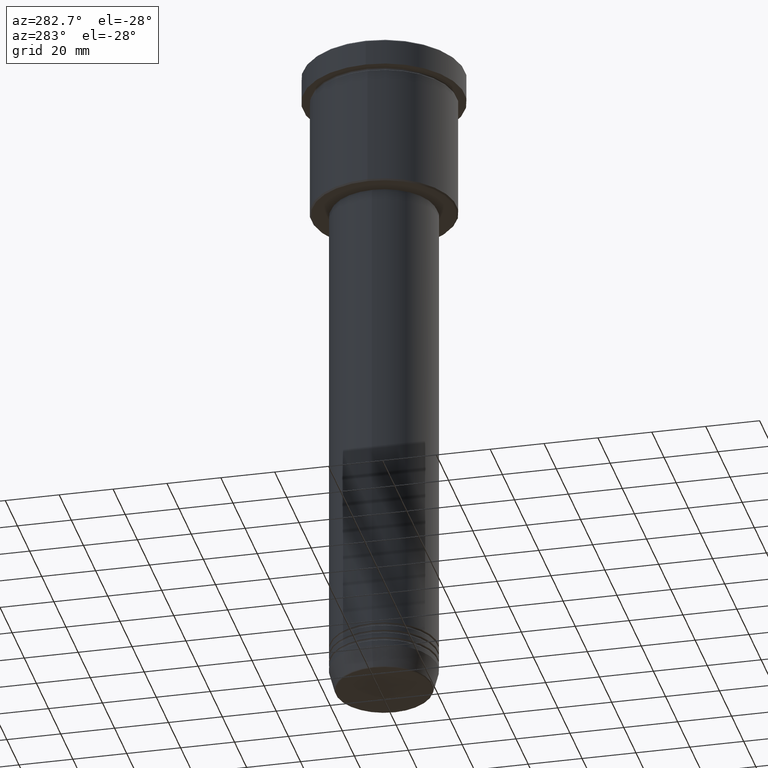
[diagram: clean part render]
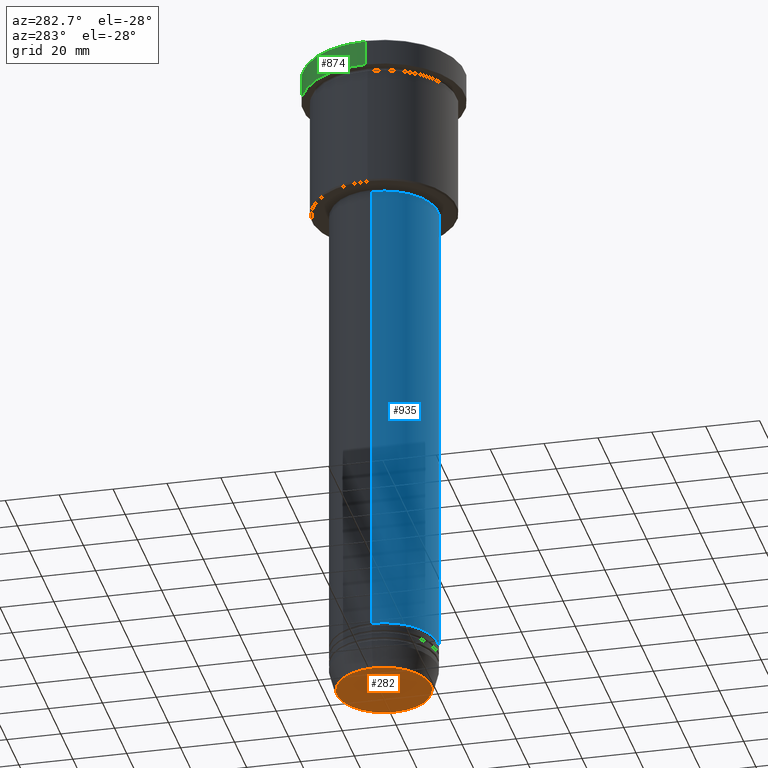
[diagram: same view with three faces highlighted in distinct colors, each labeled with its STEP entity id]
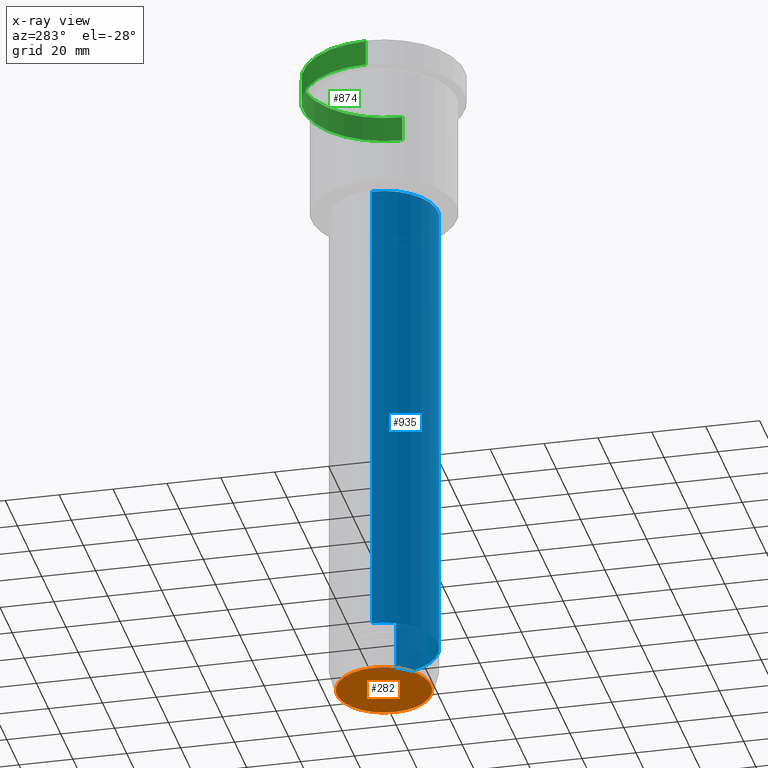
[diagram: x-ray of the same camera — body ghosted, the three highlighted faces saturated]
A machine part, auxiliary view with three faces highlighted in distinct colors.
The next image is the same camera in x-ray (body ghosted, the three faces saturated) — at least one of them is partly hidden behind the body in this view.
Their STEP definitions:

[orange] entity #282 — the highlighted planar face has unit normal (0, -0, 1).
#10 = AXIS2_PLACEMENT_3D ( 'NONE', #700, #515, #49 ) ;
#42 = CIRCLE ( 'NONE', #476, 17.47274296656154036 ) ;
#49 = DIRECTION ( 'NONE',  ( 1.000000000000000000, 0.000000000000000000, 0.000000000000000000 ) ) ;
#119 = VERTEX_POINT ( 'NONE', #770 ) ;
#282 = ADVANCED_FACE ( 'NONE', ( #811 ), #723, .F. ) ;
#308 = VERTEX_POINT ( 'NONE', #1068 ) ;
#343 = EDGE_CURVE ( 'NONE', #308, #119, #432, .T. ) ;
#432 = CIRCLE ( 'NONE', #976, 17.47274296656154036 ) ;
#437 = ORIENTED_EDGE ( 'NONE', *, *, #1122, .T. ) ;
#476 = AXIS2_PLACEMENT_3D ( 'NONE', #677, #755, #760 ) ;
#515 = DIRECTION ( 'NONE',  ( 0.000000000000000000, -0.000000000000000000, 1.000000000000000000 ) ) ;
#677 = CARTESIAN_POINT ( 'NONE',  ( 0.000000000000000000, 0.000000000000000000, -251.0000000000000000 ) ) ;
#700 = CARTESIAN_POINT ( 'NONE',  ( 0.000000000000000000, 0.000000000000000000, -251.0000000000000000 ) ) ;
#723 = PLANE ( 'NONE',  #10 ) ;
#730 = CARTESIAN_POINT ( 'NONE',  ( 0.000000000000000000, 0.000000000000000000, -251.0000000000000000 ) ) ;
#755 = DIRECTION ( 'NONE',  ( 0.000000000000000000, 0.000000000000000000, -1.000000000000000000 ) ) ;
#760 = DIRECTION ( 'NONE',  ( 1.000000000000000000, 0.000000000000000000, 0.000000000000000000 ) ) ;
#770 = CARTESIAN_POINT ( 'NONE',  ( -17.47274296656154036, 2.169366823916869292E-15, -251.0000000000000000 ) ) ;
#811 = FACE_OUTER_BOUND ( 'NONE', #871, .T. ) ;
#820 = ORIENTED_EDGE ( 'NONE', *, *, #343, .T. ) ;
#871 = EDGE_LOOP ( 'NONE', ( #820, #437 ) ) ;
#976 = AXIS2_PLACEMENT_3D ( 'NONE', #730, #1087, #1075 ) ;
#1068 = CARTESIAN_POINT ( 'NONE',  ( 17.47274296656154036, 0.000000000000000000, -251.0000000000000000 ) ) ;
#1075 = DIRECTION ( 'NONE',  ( 1.000000000000000000, 0.000000000000000000, 0.000000000000000000 ) ) ;
#1087 = DIRECTION ( 'NONE',  ( 0.000000000000000000, 0.000000000000000000, -1.000000000000000000 ) ) ;
#1122 = EDGE_CURVE ( 'NONE', #119, #308, #42, .T. ) ;

[blue] entity #935 — the highlighted cylindrical surface (partial cylindrical patch) has radius 20 mm, axis along (-0, -0, 1).
#73 = DIRECTION ( 'NONE',  ( -0.000000000000000000, -0.000000000000000000, 1.000000000000000000 ) ) ;
#88 = LINE ( 'NONE', #1093, #1027 ) ;
#160 = DIRECTION ( 'NONE',  ( -0.000000000000000000, -0.000000000000000000, 1.000000000000000000 ) ) ;
#209 = ORIENTED_EDGE ( 'NONE', *, *, #1083, .T. ) ;
#227 = VERTEX_POINT ( 'NONE', #352 ) ;
#242 = FACE_OUTER_BOUND ( 'NONE', #963, .T. ) ;
#255 = CARTESIAN_POINT ( 'NONE',  ( 0.000000000000000000, 0.000000000000000000, -234.0000000000000000 ) ) ;
#324 = LINE ( 'NONE', #810, #784 ) ;
#352 = CARTESIAN_POINT ( 'NONE',  ( -20.00000000000000000, 2.449293598294706513E-15, -234.0000000000000000 ) ) ;
#384 = CIRCLE ( 'NONE', #1054, 20.00000000000000000 ) ;
#438 = DIRECTION ( 'NONE',  ( -0.000000000000000000, -0.000000000000000000, 1.000000000000000000 ) ) ;
#462 = ORIENTED_EDGE ( 'NONE', *, *, #1080, .F. ) ;
#531 = CARTESIAN_POINT ( 'NONE',  ( 0.000000000000000000, 0.000000000000000000, 0.000000000000000000 ) ) ;
#539 = DIRECTION ( 'NONE',  ( -0.000000000000000000, -0.000000000000000000, 1.000000000000000000 ) ) ;
#563 = VERTEX_POINT ( 'NONE', #670 ) ;
#633 = DIRECTION ( 'NONE',  ( -0.000000000000000000, -0.000000000000000000, 1.000000000000000000 ) ) ;
#653 = VERTEX_POINT ( 'NONE', #727 ) ;
#666 = EDGE_CURVE ( 'NONE', #563, #1172, #324, .T. ) ;
#670 = CARTESIAN_POINT ( 'NONE',  ( 20.00000000000000000, 0.000000000000000000, -234.0000000000000000 ) ) ;
#678 = AXIS2_PLACEMENT_3D ( 'NONE', #1099, #73, #812 ) ;
#688 = ORIENTED_EDGE ( 'NONE', *, *, #666, .T. ) ;
#706 = EDGE_CURVE ( 'NONE', #227, #653, #88, .T. ) ;
#727 = CARTESIAN_POINT ( 'NONE',  ( -20.00000000000000000, 2.449293598294706513E-15, -57.00000000000000000 ) ) ;
#737 = CIRCLE ( 'NONE', #678, 20.00000000000000000 ) ;
#784 = VECTOR ( 'NONE', #438, 1000.000000000000000 ) ;
#810 = CARTESIAN_POINT ( 'NONE',  ( 20.00000000000000000, 0.000000000000000000, 0.000000000000000000 ) ) ;
#812 = DIRECTION ( 'NONE',  ( 1.000000000000000000, 0.000000000000000000, 0.000000000000000000 ) ) ;
#861 = ORIENTED_EDGE ( 'NONE', *, *, #706, .F. ) ;
#919 = DIRECTION ( 'NONE',  ( 1.000000000000000000, 0.000000000000000000, 0.000000000000000000 ) ) ;
#935 = ADVANCED_FACE ( 'NONE', ( #242 ), #1004, .T. ) ;
#947 = CARTESIAN_POINT ( 'NONE',  ( 20.00000000000000000, 0.000000000000000000, -57.00000000000000000 ) ) ;
#963 = EDGE_LOOP ( 'NONE', ( #861, #209, #688, #462 ) ) ;
#987 = DIRECTION ( 'NONE',  ( 1.000000000000000000, 0.000000000000000000, 0.000000000000000000 ) ) ;
#992 = AXIS2_PLACEMENT_3D ( 'NONE', #531, #160, #919 ) ;
#1004 = CYLINDRICAL_SURFACE ( 'NONE', #992, 20.00000000000000000 ) ;
#1027 = VECTOR ( 'NONE', #539, 1000.000000000000000 ) ;
#1054 = AXIS2_PLACEMENT_3D ( 'NONE', #255, #633, #987 ) ;
#1080 = EDGE_CURVE ( 'NONE', #653, #1172, #737, .T. ) ;
#1083 = EDGE_CURVE ( 'NONE', #227, #563, #384, .T. ) ;
#1093 = CARTESIAN_POINT ( 'NONE',  ( -20.00000000000000000, 2.449293598294706513E-15, 0.000000000000000000 ) ) ;
#1099 = CARTESIAN_POINT ( 'NONE',  ( 0.000000000000000000, 0.000000000000000000, -57.00000000000000000 ) ) ;
#1172 = VERTEX_POINT ( 'NONE', #947 ) ;

[green] entity #874 — the highlighted cylindrical surface (partial cylindrical patch) has radius 30 mm, axis along (-0, -0, 1).
#28 = DIRECTION ( 'NONE',  ( -0.000000000000000000, -0.000000000000000000, 1.000000000000000000 ) ) ;
#57 = AXIS2_PLACEMENT_3D ( 'NONE', #372, #28, #671 ) ;
#58 = CIRCLE ( 'NONE', #1042, 30.00000000000000000 ) ;
#69 = LINE ( 'NONE', #340, #394 ) ;
#81 = CARTESIAN_POINT ( 'NONE',  ( 30.00000000000000000, 0.000000000000000000, -0.5000000000000073275 ) ) ;
#164 = CARTESIAN_POINT ( 'NONE',  ( -30.00000000000000000, 3.673940397442059178E-15, -0.5000000000000073275 ) ) ;
#237 = DIRECTION ( 'NONE',  ( -0.000000000000000000, -0.000000000000000000, 1.000000000000000000 ) ) ;
#340 = CARTESIAN_POINT ( 'NONE',  ( -30.00000000000000000, 3.673940397442059178E-15, 0.000000000000000000 ) ) ;
#360 = CARTESIAN_POINT ( 'NONE',  ( 0.000000000000000000, 0.000000000000000000, -0.5000000000000073275 ) ) ;
#372 = CARTESIAN_POINT ( 'NONE',  ( 0.000000000000000000, 0.000000000000000000, 0.000000000000000000 ) ) ;
#387 = EDGE_CURVE ( 'NONE', #808, #596, #58, .T. ) ;
#394 = VECTOR ( 'NONE', #882, 1000.000000000000000 ) ;
#464 = EDGE_CURVE ( 'NONE', #596, #923, #69, .T. ) ;
#475 = ORIENTED_EDGE ( 'NONE', *, *, #387, .T. ) ;
#489 = CIRCLE ( 'NONE', #878, 30.00000000000000000 ) ;
#510 = ORIENTED_EDGE ( 'NONE', *, *, #464, .T. ) ;
#525 = ORIENTED_EDGE ( 'NONE', *, *, #530, .F. ) ;
#530 = EDGE_CURVE ( 'NONE', #808, #920, #726, .T. ) ;
#541 = ORIENTED_EDGE ( 'NONE', *, *, #1053, .T. ) ;
#574 = CARTESIAN_POINT ( 'NONE',  ( 0.000000000000000000, 0.000000000000000000, -9.999999999999992895 ) ) ;
#591 = EDGE_LOOP ( 'NONE', ( #475, #510, #541, #525 ) ) ;
#596 = VERTEX_POINT ( 'NONE', #1161 ) ;
#636 = CARTESIAN_POINT ( 'NONE',  ( 30.00000000000000000, 0.000000000000000000, 0.000000000000000000 ) ) ;
#661 = FACE_OUTER_BOUND ( 'NONE', #591, .T. ) ;
#671 = DIRECTION ( 'NONE',  ( 1.000000000000000000, 0.000000000000000000, 0.000000000000000000 ) ) ;
#710 = CARTESIAN_POINT ( 'NONE',  ( 30.00000000000000000, 0.000000000000000000, -9.999999999999992895 ) ) ;
#726 = LINE ( 'NONE', #636, #889 ) ;
#746 = DIRECTION ( 'NONE',  ( 0.000000000000000000, 0.000000000000000000, -1.000000000000000000 ) ) ;
#808 = VERTEX_POINT ( 'NONE', #710 ) ;
#849 = CYLINDRICAL_SURFACE ( 'NONE', #57, 30.00000000000000000 ) ;
#874 = ADVANCED_FACE ( 'NONE', ( #661 ), #849, .T. ) ;
#878 = AXIS2_PLACEMENT_3D ( 'NONE', #360, #746, #1084 ) ;
#882 = DIRECTION ( 'NONE',  ( -0.000000000000000000, -0.000000000000000000, 1.000000000000000000 ) ) ;
#889 = VECTOR ( 'NONE', #237, 1000.000000000000000 ) ;
#920 = VERTEX_POINT ( 'NONE', #81 ) ;
#923 = VERTEX_POINT ( 'NONE', #164 ) ;
#937 = DIRECTION ( 'NONE',  ( 1.000000000000000000, 0.000000000000000000, 0.000000000000000000 ) ) ;
#1026 = DIRECTION ( 'NONE',  ( -0.000000000000000000, -0.000000000000000000, 1.000000000000000000 ) ) ;
#1042 = AXIS2_PLACEMENT_3D ( 'NONE', #574, #1026, #937 ) ;
#1053 = EDGE_CURVE ( 'NONE', #923, #920, #489, .T. ) ;
#1084 = DIRECTION ( 'NONE',  ( 1.000000000000000000, 0.000000000000000000, 0.000000000000000000 ) ) ;
#1161 = CARTESIAN_POINT ( 'NONE',  ( -30.00000000000000000, 3.673940397442059178E-15, -9.999999999999992895 ) ) ;